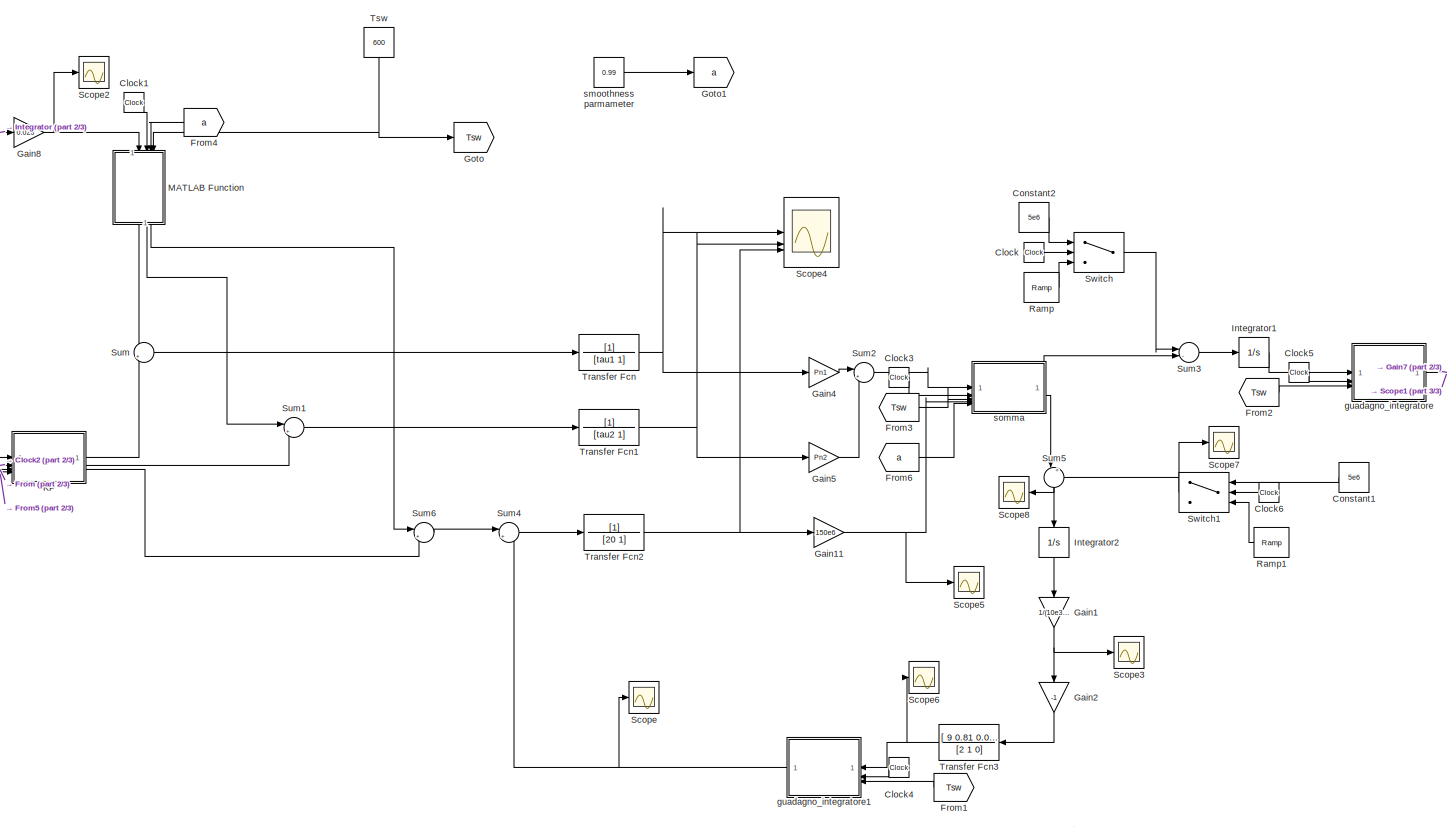
[diagram: root canvas - part 1/3, most of the canvas]
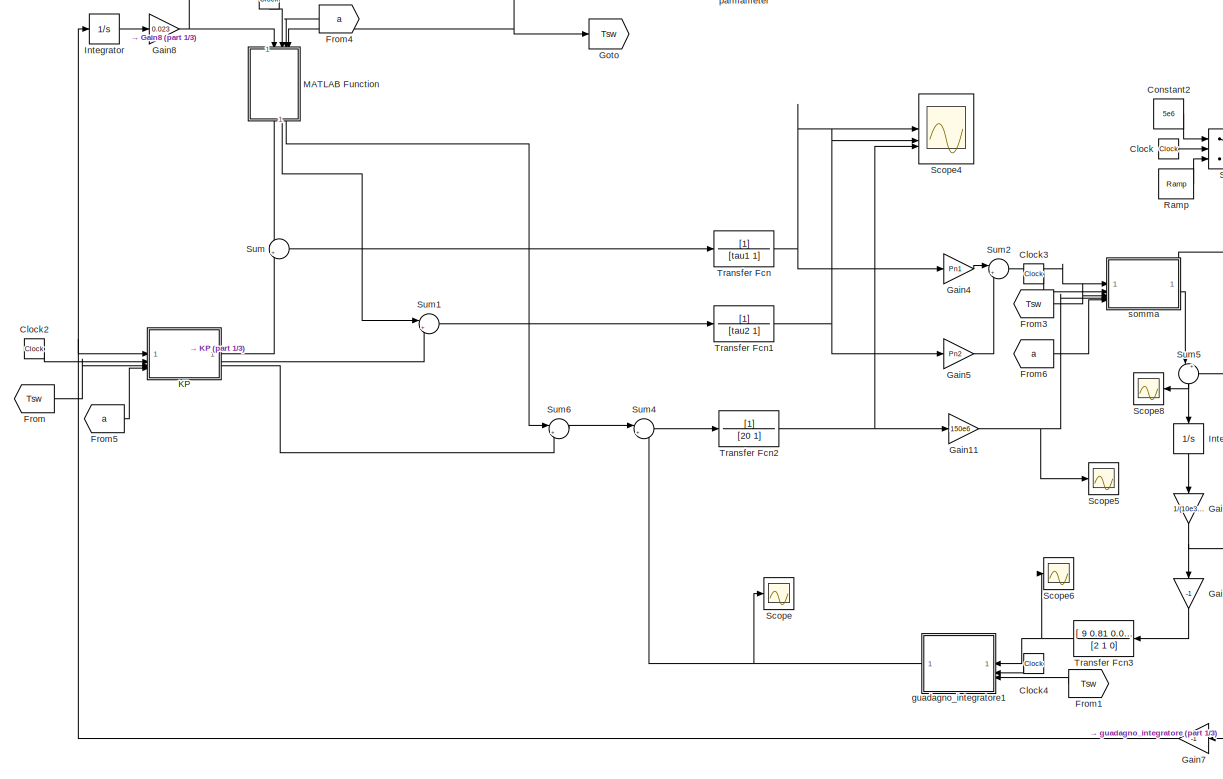
[diagram: root canvas - part 2/3, most of the canvas]
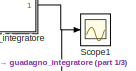
[diagram: root canvas - part 3/3, middle right region]
MODEL slx_ae4c679e0425
KIND model
CONFIG AbsTol = auto
CONFIG EnableMultiTasking = off
CONFIG FixedStep = auto
CONFIG MaxStep = auto
CONFIG MinStep = auto
CONFIG RelTol = 1e-3
CONFIG SampleTimeConstraint = Unconstrained
CONFIG SolverName = VariableStepAuto
CONFIG StartTime = 0.0
CONFIG StopTime = 2000
BLOCK [Clock] Clock
BLOCK [Clock] Clock1
  NameLocation = left
BLOCK [Clock] Clock2
BLOCK [Clock] Clock3
BLOCK [Clock] Clock4
  NameLocation = top
BLOCK [Clock] Clock5
BLOCK [Clock] Clock6
  NameLocation = top
BLOCK [Constant] Constant1
  NameLocation = top
  Value = 5e6
BLOCK [Constant] Constant2
  Value = 5e6
BLOCK [From] From
  GotoTag = Tsw
BLOCK [From] From1
  GotoTag = Tsw
  NameLocation = top
BLOCK [From] From2
  GotoTag = Tsw
BLOCK [From] From3
  GotoTag = Tsw
BLOCK [From] From4
  GotoTag = a
  NameLocation = top
BLOCK [From] From5
  GotoTag = a
BLOCK [From] From6
  GotoTag = a
BLOCK [Gain] Gain1
  Gain = 1/(10e3*314^2)
  NameLocation = left
BLOCK [Gain] Gain11
  Gain = 150e6
BLOCK [Gain] Gain2
  Gain = -1
  NameLocation = left
BLOCK [Gain] Gain4
  Gain = Pn1
BLOCK [Gain] Gain5
  Gain = Pn2
BLOCK [Gain] Gain7
  Gain = -1
  NameLocation = top
BLOCK [Gain] Gain8
  Gain = 0.023
BLOCK [Goto] Goto
  GotoTag = Tsw
BLOCK [Goto] Goto1
  GotoTag = a
BLOCK [Integrator] Integrator
BLOCK [Integrator] Integrator1
BLOCK [Integrator] Integrator2
  NameLocation = left
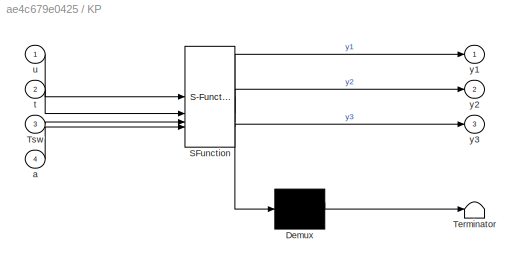
BLOCK [SubSystem] KP
  ErrorFcn = Stateflow.Translate.translate
  LibrarySourceBlock = simulink/User-Defined\nFunctions/MATLAB Function
  PermitHierarchicalResolution = ExplicitOnly
  SFBlockType = MATLAB Function
  TreatAsAtomicUnit = on
BLOCK [Demux] KP/ Demux 
  Outputs = 1
BLOCK [S-Function] KP/ SFunction 
  EnableBusSupport = on
  FunctionName = sf_sfun
  PortCounts = [4 4]
  SFcnIsStateOwnerBlock = off
  SFunctionDeploymentMode = off
  Tag = Stateflow S-Function 1
BLOCK [Terminator] KP/ Terminator 
BLOCK [Inport] KP/Tsw
  Port = 3
BLOCK [Inport] KP/a
  Port = 4
BLOCK [Inport] KP/t
  Port = 2
BLOCK [Inport] KP/u
BLOCK [Outport] KP/y1
BLOCK [Outport] KP/y2
  Port = 2
BLOCK [Outport] KP/y3
  Port = 3
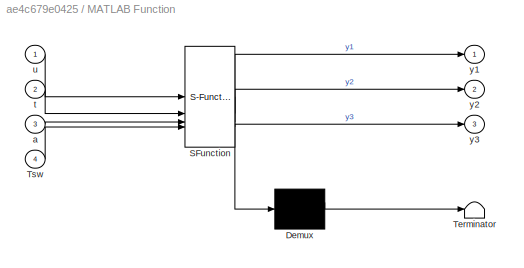
BLOCK [SubSystem] MATLAB Function
  ErrorFcn = Stateflow.Translate.translate
  LibrarySourceBlock = simulink/User-Defined\nFunctions/MATLAB Function
  NameLocation = left
  PermitHierarchicalResolution = ExplicitOnly
  SFBlockType = MATLAB Function
  TreatAsAtomicUnit = on
BLOCK [Demux] MATLAB Function/ Demux 
  Outputs = 1
BLOCK [S-Function] MATLAB Function/ SFunction 
  EnableBusSupport = on
  FunctionName = sf_sfun
  PortCounts = [4 4]
  SFcnIsStateOwnerBlock = off
  SFunctionDeploymentMode = off
  Tag = Stateflow S-Function 2
BLOCK [Terminator] MATLAB Function/ Terminator 
BLOCK [Inport] MATLAB Function/Tsw
  Port = 4
BLOCK [Inport] MATLAB Function/a
  Port = 3
BLOCK [Inport] MATLAB Function/t
  Port = 2
BLOCK [Inport] MATLAB Function/u
BLOCK [Outport] MATLAB Function/y1
BLOCK [Outport] MATLAB Function/y2
  Port = 2
BLOCK [Outport] MATLAB Function/y3
  Port = 3
BLOCK [Reference] Ramp  REF=simulink/Sources/Ramp
  SourceBlock = simulink/Sources/Ramp
  SourceType = Ramp
BLOCK [Reference] Ramp1  REF=simulink/Sources/Ramp
  NameLocation = top
  SourceBlock = simulink/Sources/Ramp
  SourceType = Ramp
BLOCK [Scope] Scope
  Floating = off
  NumInputPorts = 1
  ScopeSpecificationString = Simulink.scopes.TimeScopeBlockCfg('CurrentConfiguration', extmgr.ConfigurationSet(extmgr.Configuration('Core','General UI',true),extmgr.Configuration('Core','Source UI',true),extmgr.Configuration('Sources','WiredSimulink',true,'DataLoggingVariableName','ScopeData1'),extmgr.Configuration('Visuals','Time Domain',true,'SerializedDisplays',{struct('MinYLimReal','-0.01984','MaxYLimReal','0.03923','YLab...<+1415ch>
BLOCK [Scope] Scope1
  Floating = off
  NumInputPorts = 1
  ScopeSpecificationString = Simulink.scopes.TimeScopeBlockCfg('CurrentConfiguration', extmgr.ConfigurationSet(extmgr.Configuration('Core','General UI',true,'FigureColor',[1 1 1]),extmgr.Configuration('Core','Source UI',true),extmgr.Configuration('Sources','WiredSimulink',true,'DataLoggingVariableName','ScopeData2'),extmgr.Configuration('Visuals','Time Domain',true,'SerializedDisplays',{struct('MinYLimReal','-0.02825','MaxYLi...<+1716ch>
BLOCK [Scope] Scope2
  Floating = off
  NumInputPorts = 1
  ScopeSpecificationString = Simulink.scopes.TimeScopeBlockCfg('CurrentConfiguration', extmgr.ConfigurationSet(extmgr.Configuration('Core','General UI',true),extmgr.Configuration('Core','Source UI',true),extmgr.Configuration('Sources','WiredSimulink',true,'DataLoggingVariableName','ScopeData3'),extmgr.Configuration('Visuals','Time Domain',true,'SerializedDisplays',{struct('MinYLimReal','-0.00935','MaxYLimReal','0.08412','YLab...<+1416ch>
BLOCK [Scope] Scope3
  Floating = off
  NumInputPorts = 1
  ScopeSpecificationString = Simulink.scopes.TimeScopeBlockCfg('CurrentConfiguration', extmgr.ConfigurationSet(extmgr.Configuration('Core','General UI',true,'FigureColor',[1 1 1]),extmgr.Configuration('Core','Source UI',true),extmgr.Configuration('Sources','WiredSimulink',true,'DataLoggingVariableName','ScopeData4'),extmgr.Configuration('Visuals','Time Domain',true,'SerializedDisplays',{struct('MinYLimReal','-0.02858','MaxYLi...<+1609ch>
BLOCK [Scope] Scope4
  Floating = off
  NumInputPorts = 3
  ScopeSpecificationString = Simulink.scopes.TimeScopeBlockCfg('CurrentConfiguration', extmgr.ConfigurationSet(extmgr.Configuration('Core','General UI',true,'FigureColor',[1 1 1]),extmgr.Configuration('Core','Source UI',true),extmgr.Configuration('Sources','WiredSimulink',true),extmgr.Configuration('Visuals','Time Domain',true,'SerializedDisplays',{struct('MinYLimReal','-0.00892','MaxYLimReal','0.08025','YLabelReal','','MinYL...<+1857ch>
BLOCK [Scope] Scope5
  Floating = off
  NumInputPorts = 1
  ScopeSpecificationString = Simulink.scopes.TimeScopeBlockCfg('CurrentConfiguration', extmgr.ConfigurationSet(extmgr.Configuration('Core','General UI',true),extmgr.Configuration('Core','Source UI',true),extmgr.Configuration('Sources','WiredSimulink',true,'DataLoggingVariableName','ScopeData5'),extmgr.Configuration('Visuals','Time Domain',true,'SerializedDisplays',{struct('MinYLimReal','-691160.37557','MaxYLimReal','6220443.3...<+1443ch>
BLOCK [Scope] Scope6
  Floating = off
  NumInputPorts = 1
  ScopeSpecificationString = Simulink.scopes.TimeScopeBlockCfg('CurrentConfiguration', extmgr.ConfigurationSet(extmgr.Configuration('Core','General UI',true),extmgr.Configuration('Core','Source UI',true),extmgr.Configuration('Sources','WiredSimulink',true,'DataLoggingVariableName','ScopeData6'),extmgr.Configuration('Visuals','Time Domain',true,'SerializedDisplays',{struct('MinYLimReal','-0.01984','MaxYLimReal','0.03923','YLab...<+1406ch>
BLOCK [Scope] Scope7
  Floating = off
  NumInputPorts = 1
  ScopeSpecificationString = Simulink.scopes.TimeScopeBlockCfg('CurrentConfiguration', extmgr.ConfigurationSet(extmgr.Configuration('Core','General UI',true),extmgr.Configuration('Core','Source UI',true),extmgr.Configuration('Sources','WiredSimulink',true,'DataLoggingVariableName','ScopeData7'),extmgr.Configuration('Visuals','Time Domain',true,'SerializedDisplays',{struct('MinYLimReal','-625000.00000','MaxYLimReal','5625000.0...<+1437ch>
BLOCK [Scope] Scope8
  Floating = off
  NameLocation = top
  NumInputPorts = 1
  ScopeSpecificationString = Simulink.scopes.TimeScopeBlockCfg('CurrentConfiguration', extmgr.ConfigurationSet(extmgr.Configuration('Core','General UI',true),extmgr.Configuration('Core','Source UI',true),extmgr.Configuration('Sources','WiredSimulink',true,'DataLoggingVariableName','ScopeData8'),extmgr.Configuration('Visuals','Time Domain',true,'SerializedDisplays',{struct('MinYLimReal','-3229285.93541','MaxYLimReal','3366643....<+1438ch>
BLOCK [Sum] Sum
  Inputs = |++
BLOCK [Sum] Sum1
  Inputs = |++
BLOCK [Sum] Sum2
  Inputs = |++
BLOCK [Sum] Sum3
  Inputs = |-+
BLOCK [Sum] Sum4
  Inputs = |++
BLOCK [Sum] Sum5
  Inputs = |+-
  NameLocation = left
BLOCK [Sum] Sum6
  Inputs = |++
BLOCK [Switch] Switch
  Criteria = u2 > Threshold
  InputSameDT = off
  SaturateOnIntegerOverflow = off
  Threshold = 10
BLOCK [Switch] Switch1
  Criteria = u2 > Threshold
  InputSameDT = off
  NameLocation = top
  SaturateOnIntegerOverflow = off
  Threshold = 610
BLOCK [TransferFcn] Transfer Fcn
  Denominator = [tau1 1]
BLOCK [TransferFcn] Transfer Fcn1
  Denominator = [tau2 1]
BLOCK [TransferFcn] Transfer Fcn2
  Denominator = [20 1]
BLOCK [TransferFcn] Transfer Fcn3
  Denominator = [2 1 0]
  NameLocation = top
  Numerator = [ 9  0.81 0.018   ]
BLOCK [Constant] Tsw
  NameLocation = left
  Value = 600
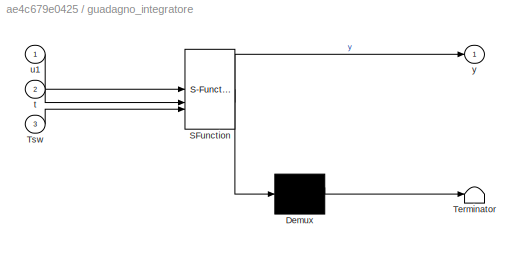
BLOCK [SubSystem] guadagno_integratore
  ErrorFcn = Stateflow.Translate.translate
  LibrarySourceBlock = simulink/User-Defined\nFunctions/MATLAB Function
  PermitHierarchicalResolution = ExplicitOnly
  SFBlockType = MATLAB Function
  TreatAsAtomicUnit = on
BLOCK [Demux] guadagno_integratore/ Demux 
  Outputs = 1
BLOCK [S-Function] guadagno_integratore/ SFunction 
  EnableBusSupport = on
  FunctionName = sf_sfun
  PortCounts = [3 2]
  SFcnIsStateOwnerBlock = off
  SFunctionDeploymentMode = off
  Tag = Stateflow S-Function 4
BLOCK [Terminator] guadagno_integratore/ Terminator 
BLOCK [Inport] guadagno_integratore/Tsw
  Port = 3
BLOCK [Inport] guadagno_integratore/t
  Port = 2
BLOCK [Inport] guadagno_integratore/u1
BLOCK [Outport] guadagno_integratore/y
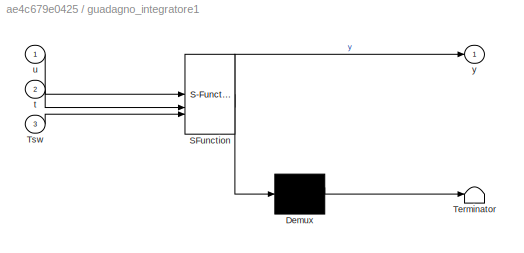
BLOCK [SubSystem] guadagno_integratore1
  ErrorFcn = Stateflow.Translate.translate
  LibrarySourceBlock = simulink/User-Defined\nFunctions/MATLAB Function
  NameLocation = top
  PermitHierarchicalResolution = ExplicitOnly
  SFBlockType = MATLAB Function
  TreatAsAtomicUnit = on
BLOCK [Demux] guadagno_integratore1/ Demux 
  Outputs = 1
BLOCK [S-Function] guadagno_integratore1/ SFunction 
  EnableBusSupport = on
  FunctionName = sf_sfun
  PortCounts = [3 2]
  SFcnIsStateOwnerBlock = off
  SFunctionDeploymentMode = off
  Tag = Stateflow S-Function 5
BLOCK [Terminator] guadagno_integratore1/ Terminator 
BLOCK [Inport] guadagno_integratore1/Tsw
  Port = 3
BLOCK [Inport] guadagno_integratore1/t
  Port = 2
BLOCK [Inport] guadagno_integratore1/u
BLOCK [Outport] guadagno_integratore1/y
BLOCK [Constant] smoothness parmameter
  Value = 0.99
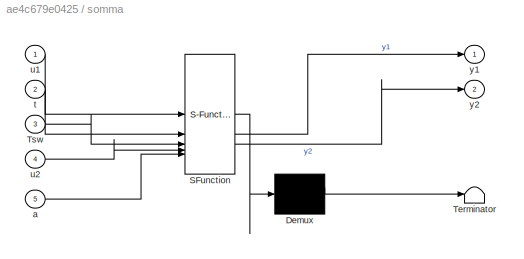
BLOCK [SubSystem] somma
  ErrorFcn = Stateflow.Translate.translate
  LibrarySourceBlock = simulink/User-Defined\nFunctions/MATLAB Function
  PermitHierarchicalResolution = ExplicitOnly
  SFBlockType = MATLAB Function
  TreatAsAtomicUnit = on
BLOCK [Demux] somma/ Demux 
  Outputs = 1
BLOCK [S-Function] somma/ SFunction 
  EnableBusSupport = on
  FunctionName = sf_sfun
  PortCounts = [5 3]
  SFcnIsStateOwnerBlock = off
  SFunctionDeploymentMode = off
  Tag = Stateflow S-Function 3
BLOCK [Terminator] somma/ Terminator 
BLOCK [Inport] somma/Tsw
  Port = 3
BLOCK [Inport] somma/a
  Port = 5
BLOCK [Inport] somma/t
  Port = 2
BLOCK [Inport] somma/u1
BLOCK [Inport] somma/u2
  Port = 4
BLOCK [Outport] somma/y1
BLOCK [Outport] somma/y2
  Port = 2
LINE Clock1:1 -> MATLAB Function:2
LINE Clock2:1 -> KP:2
LINE Clock3:1 -> somma:2
LINE Clock4:1 -> guadagno_integratore1:2
LINE Clock5:1 -> guadagno_integratore:2
LINE Clock6:1 -> Switch1:2
LINE Clock:1 -> Switch:2
LINE Constant1:1 -> Switch1:1
LINE Constant2:1 -> Switch:1
LINE From1:1 -> guadagno_integratore1:3
LINE From2:1 -> guadagno_integratore:3
LINE From3:1 -> somma:3
LINE From4:1 -> MATLAB Function:3
LINE From5:1 -> KP:4
LINE From6:1 -> somma:5
LINE From:1 -> KP:3
NET Gain11:1 -> Scope5:1, somma:4
NET Gain1:1 -> Gain2:1, Scope3:1
LINE Gain2:1 -> Transfer Fcn3:1
LINE Gain4:1 -> Sum2:1
LINE Gain5:1 -> Sum2:2
NET Gain7:1 -> Integrator:1, KP:1
NET Gain8:1 -> MATLAB Function:1, Scope2:1
LINE Integrator1:1 -> guadagno_integratore:1
LINE Integrator2:1 -> Gain1:1
LINE Integrator:1 -> Gain8:1
LINE KP:1 -> Sum:2
LINE KP:2 -> Sum1:2
LINE KP:3 -> Sum6:2
LINE MATLAB Function:1 -> Sum:1
LINE MATLAB Function:2 -> Sum1:1
LINE MATLAB Function:3 -> Sum6:1
LINE Ramp1:1 -> Switch1:3
LINE Ramp:1 -> Switch:3
LINE Sum1:1 -> Transfer Fcn1:1
LINE Sum2:1 -> somma:1
LINE Sum3:1 -> Integrator1:1
LINE Sum4:1 -> Transfer Fcn2:1
NET Sum5:1 -> Integrator2:1, Scope8:1
LINE Sum6:1 -> Sum4:1
LINE Sum:1 -> Transfer Fcn:1
NET Switch1:1 -> Scope7:1, Sum5:2
LINE Switch:1 -> Sum3:1
NET Transfer Fcn1:1 -> Gain5:1, Scope4:2
NET Transfer Fcn2:1 -> Gain11:1, Scope4:3
NET Transfer Fcn3:1 -> Scope6:1, guadagno_integratore1:1
NET Transfer Fcn:1 -> Gain4:1, Scope4:1
NET Tsw:1 -> Goto:1, MATLAB Function:4
NET guadagno_integratore1:1 -> Scope:1, Sum4:2
NET guadagno_integratore:1 -> Gain7:1, Scope1:1
LINE smoothness parmameter:1 -> Goto1:1
LINE somma:1 -> Sum3:2
LINE somma:2 -> Sum5:1
note: NET lines group one-source signal fan-out (src -> all destinations, sorted); 1:1 wires keep LINE
CHART KP states=1 transitions=1
  STATE_LABEL 'eML_blk_kernel()'
  STATE_LABEL 'SCRIPT:\nfunction [y1, y2,y3] = fcn(u, t, Tsw, a)\nif t<Tsw\n    y1=0.91*u;   \n    y2=4.773*u;\n    y3=0.182*u;\nelse \n    y1=(0.014*(1-a^(t-Tsw))+0.91*a^(t-Tsw))*u;\n    y2=(3.686*(1-a^(t-Tsw))+4.773*a^(t-Tsw))*u;\n    y3=0.182*a^(t-Tsw)*u;\nend \n\n'
CHART MATLAB Function states=1 transitions=1
  STATE_LABEL 'eML_blk_kernel()'
  STATE_LABEL 'SCRIPT:\nfunction [y1,y2,y3] = fcn(u, t, a, Tsw)\n if t<Tsw\n    y3=0.4*u;\n    y2=0.2*u;\n    y1=0.4*u;\n  else \n    y1=(1/3*(1-a^(t-Tsw))+0.4*a^(t-Tsw))*u;\n    y2=(2/3*(1-a^(t-Tsw))+0.2*a^(t-Tsw))*u;\n    y3=0.4*a^(t-Tsw)*u;\n \nend\n\n\n\n\n\n'
CHART somma states=1 transitions=1
  STATE_LABEL 'eML_blk_kernel()'
  STATE_LABEL 'SCRIPT:\nfunction [y1, y2] = fcn(u1, t, Tsw, u2, a)\nif t<Tsw\n    y1=(u1+u2); \n    y2=0;\nelse \n    y1=u1; \n    y2=u2;\nend \n\n'
CHART guadagno_integratore states=1 transitions=1
  STATE_LABEL 'eML_blk_kernel()'
  STATE_LABEL 'SCRIPT:\nfunction y = fcn(u1, t, Tsw)\nif t<Tsw\n    y=1/(40e3*314^2)*u1;\nelse \n    y=1/(30e3*314^2)*u1; \nend \n\n'
CHART guadagno_integratore1 states=1 transitions=1
  STATE_LABEL 'eML_blk_kernel()'
  STATE_LABEL 'SCRIPT:\nfunction y = fcn(u,t, Tsw)\nif t<Tsw\n    y=0;\nelse \n    y=u; \nend \n\n'
CHART  states=0 transitions=0
CHART  states=0 transitions=0
CHART  states=0 transitions=0
CHART  states=0 transitions=0
CHART  states=0 transitions=0
